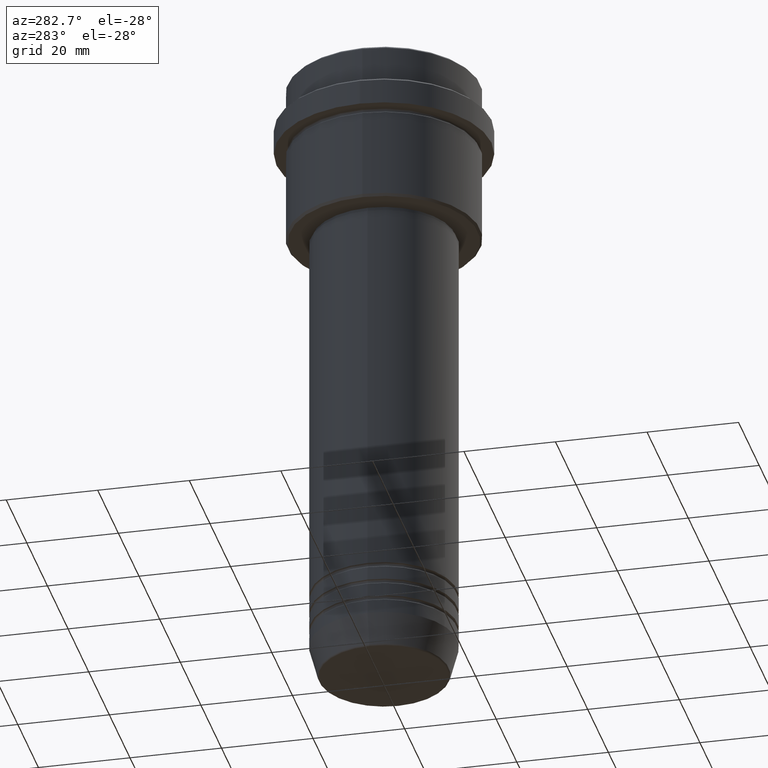
[diagram: clean part render]
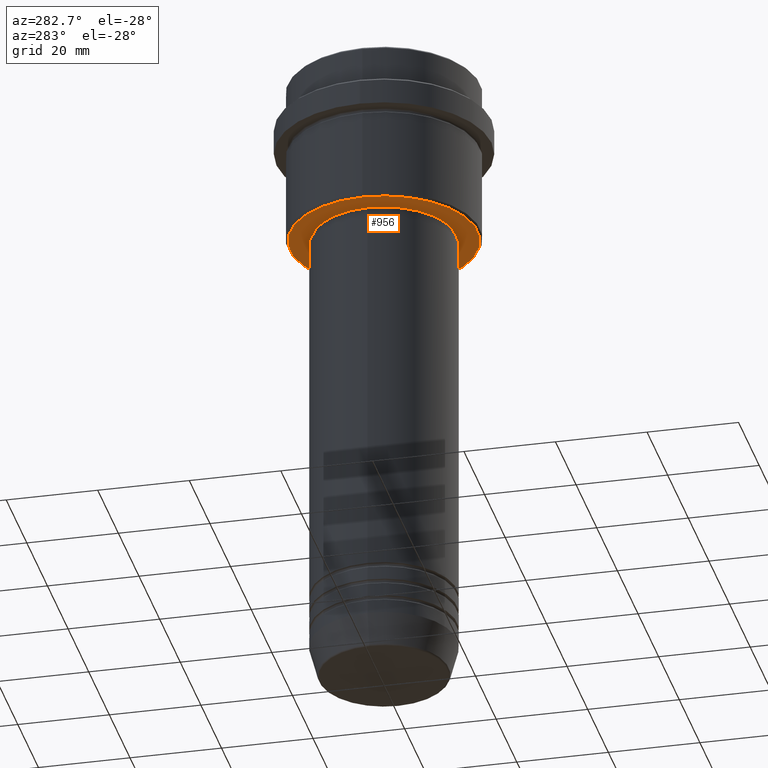
[diagram: same view with one face highlighted and labeled with its STEP entity id]
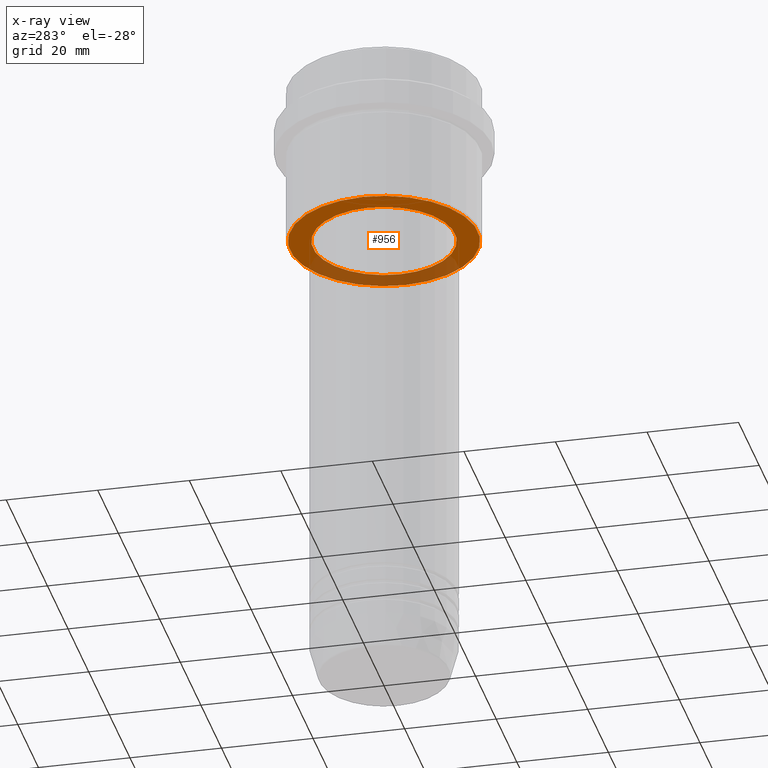
[diagram: x-ray of the same camera — body ghosted, the highlighted face saturated]
A machine part, auxiliary view. The second image highlights one B-rep face of the part: STEP entity #956.
The next image is the same camera in x-ray: the body ghosted, the highlighted face saturated — about 32% of this face is hidden behind the body in this view.
In plain terms, the highlighted planar face has unit normal (0, 0, -1).
Its self-contained STEP definition (entity closure, byte-faithful):
#43 = VERTEX_POINT ( 'NONE', #447 ) ;
#60 = PLANE ( 'NONE',  #108 ) ;
#74 = ORIENTED_EDGE ( 'NONE', *, *, #643, .T. ) ;
#108 = AXIS2_PLACEMENT_3D ( 'NONE', #1353, #1130, #375 ) ;
#120 = DIRECTION ( 'NONE',  ( 0.000000000000000000, 0.000000000000000000, -1.000000000000000000 ) ) ;
#129 = AXIS2_PLACEMENT_3D ( 'NONE', #937, #372, #1250 ) ;
#133 = CIRCLE ( 'NONE', #513, 20.50000000000001776 ) ;
#135 = FACE_BOUND ( 'NONE', #1050, .T. ) ;
#160 = EDGE_LOOP ( 'NONE', ( #281, #853 ) ) ;
#206 = AXIS2_PLACEMENT_3D ( 'NONE', #668, #749, #991 ) ;
#278 = DIRECTION ( 'NONE',  ( -0.000000000000000000, -0.000000000000000000, 1.000000000000000000 ) ) ;
#281 = ORIENTED_EDGE ( 'NONE', *, *, #822, .T. ) ;
#313 = VERTEX_POINT ( 'NONE', #437 ) ;
#372 = DIRECTION ( 'NONE',  ( 0.000000000000000000, 0.000000000000000000, -1.000000000000000000 ) ) ;
#375 = DIRECTION ( 'NONE',  ( -1.000000000000000000, 0.000000000000000000, -0.000000000000000000 ) ) ;
#429 = ORIENTED_EDGE ( 'NONE', *, *, #1381, .T. ) ;
#437 = CARTESIAN_POINT ( 'NONE',  ( 15.49999999999999645, 0.000000000000000000, -35.99999999999999289 ) ) ;
#444 = DIRECTION ( 'NONE',  ( -1.000000000000000000, 0.000000000000000000, 0.000000000000000000 ) ) ;
#447 = CARTESIAN_POINT ( 'NONE',  ( -20.50000000000001776, 2.541142108230759057E-15, -35.99999999999999289 ) ) ;
#489 = CIRCLE ( 'NONE', #554, 15.49999999999999645 ) ;
#513 = AXIS2_PLACEMENT_3D ( 'NONE', #675, #120, #444 ) ;
#536 = CIRCLE ( 'NONE', #206, 15.49999999999999645 ) ;
#554 = AXIS2_PLACEMENT_3D ( 'NONE', #1127, #278, #590 ) ;
#590 = DIRECTION ( 'NONE',  ( 1.000000000000000000, 0.000000000000000000, 0.000000000000000000 ) ) ;
#594 = FACE_OUTER_BOUND ( 'NONE', #160, .T. ) ;
#643 = EDGE_CURVE ( 'NONE', #313, #762, #536, .T. ) ;
#668 = CARTESIAN_POINT ( 'NONE',  ( 0.000000000000000000, 0.000000000000000000, -35.99999999999999289 ) ) ;
#675 = CARTESIAN_POINT ( 'NONE',  ( 0.000000000000000000, 0.000000000000000000, -35.99999999999999289 ) ) ;
#686 = CIRCLE ( 'NONE', #129, 20.50000000000001776 ) ;
#735 = CARTESIAN_POINT ( 'NONE',  ( 20.50000000000001776, 0.000000000000000000, -35.99999999999999289 ) ) ;
#749 = DIRECTION ( 'NONE',  ( -0.000000000000000000, -0.000000000000000000, 1.000000000000000000 ) ) ;
#762 = VERTEX_POINT ( 'NONE', #1305 ) ;
#822 = EDGE_CURVE ( 'NONE', #1020, #43, #133, .T. ) ;
#853 = ORIENTED_EDGE ( 'NONE', *, *, #1413, .T. ) ;
#937 = CARTESIAN_POINT ( 'NONE',  ( 0.000000000000000000, 0.000000000000000000, -35.99999999999999289 ) ) ;
#956 = ADVANCED_FACE ( 'NONE', ( #594, #135 ), #60, .T. ) ;
#991 = DIRECTION ( 'NONE',  ( 1.000000000000000000, 0.000000000000000000, 0.000000000000000000 ) ) ;
#1020 = VERTEX_POINT ( 'NONE', #735 ) ;
#1050 = EDGE_LOOP ( 'NONE', ( #74, #429 ) ) ;
#1127 = CARTESIAN_POINT ( 'NONE',  ( 0.000000000000000000, 0.000000000000000000, -35.99999999999999289 ) ) ;
#1130 = DIRECTION ( 'NONE',  ( 0.000000000000000000, 0.000000000000000000, -1.000000000000000000 ) ) ;
#1250 = DIRECTION ( 'NONE',  ( -1.000000000000000000, 0.000000000000000000, 0.000000000000000000 ) ) ;
#1305 = CARTESIAN_POINT ( 'NONE',  ( -15.49999999999999645, 1.898202538678397163E-15, -35.99999999999999289 ) ) ;
#1353 = CARTESIAN_POINT ( 'NONE',  ( 0.000000000000000000, 21.00000000000000000, -35.99999999999999289 ) ) ;
#1381 = EDGE_CURVE ( 'NONE', #762, #313, #489, .T. ) ;
#1413 = EDGE_CURVE ( 'NONE', #43, #1020, #686, .T. ) ;